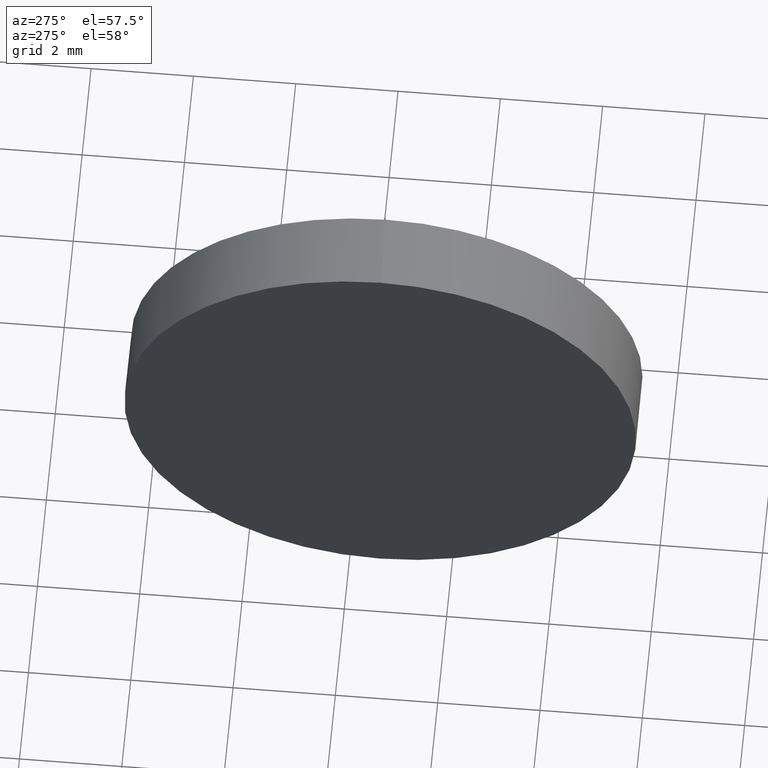
[diagram: clean part render]
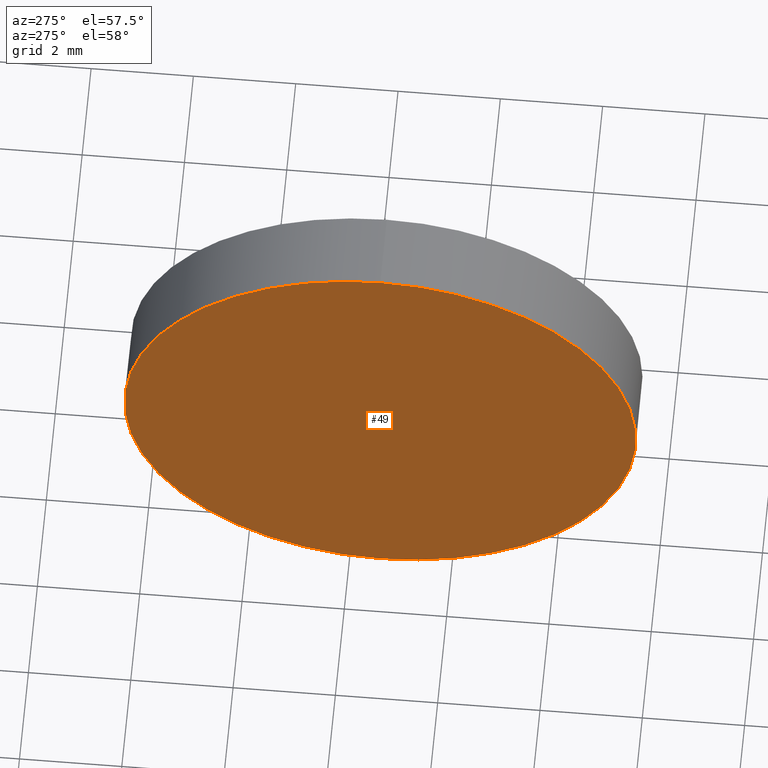
[diagram: same view with one face highlighted and labeled with its STEP entity id]
A machine part, auxiliary view. The second image highlights one B-rep face of the part: STEP entity #49.
In plain terms, the highlighted planar face has unit normal (1, 0, 0).
Its self-contained STEP definition (entity closure, byte-faithful):
#1 = EDGE_CURVE ( 'NONE', #105, #24, #130, .T. ) ;
#7 = DIRECTION ( 'NONE',  ( 0.0000000000000000000, 0.0000000000000000000, -1.000000000000000000 ) ) ;
#9 = PLANE ( 'NONE',  #38 ) ;
#24 = VERTEX_POINT ( 'NONE', #180 ) ;
#25 = DIRECTION ( 'NONE',  ( -1.000000000000000000, -0.0000000000000000000, -0.0000000000000000000 ) ) ;
#31 = CARTESIAN_POINT ( 'NONE',  ( 1101.083462945326800, 183.3935781701384300, 0.0000000000000000000 ) ) ;
#38 = AXIS2_PLACEMENT_3D ( 'NONE', #124, #181, #7 ) ;
#43 = AXIS2_PLACEMENT_3D ( 'NONE', #183, #25, #69 ) ;
#46 = EDGE_LOOP ( 'NONE', ( #56, #128 ) ) ;
#49 = ADVANCED_FACE ( 'NONE', ( #142 ), #9, .F. ) ;
#54 = DIRECTION ( 'NONE',  ( 0.0000000000000000000, 0.0000000000000000000, 1.000000000000000000 ) ) ;
#56 = ORIENTED_EDGE ( 'NONE', *, *, #1, .T. ) ;
#67 = CIRCLE ( 'NONE', #160, 5.000000000000004400 ) ;
#69 = DIRECTION ( 'NONE',  ( 0.0000000000000000000, 0.0000000000000000000, 1.000000000000000000 ) ) ;
#102 = CARTESIAN_POINT ( 'NONE',  ( 1101.083462945326800, 183.3935781701384300, 5.000000000000004400 ) ) ;
#105 = VERTEX_POINT ( 'NONE', #102 ) ;
#117 = DIRECTION ( 'NONE',  ( -1.000000000000000000, -0.0000000000000000000, -0.0000000000000000000 ) ) ;
#124 = CARTESIAN_POINT ( 'NONE',  ( 1101.083462945326800, 183.3935781701384300, 0.0000000000000000000 ) ) ;
#128 = ORIENTED_EDGE ( 'NONE', *, *, #150, .T. ) ;
#130 = CIRCLE ( 'NONE', #43, 5.000000000000004400 ) ;
#142 = FACE_OUTER_BOUND ( 'NONE', #46, .T. ) ;
#150 = EDGE_CURVE ( 'NONE', #24, #105, #67, .T. ) ;
#160 = AXIS2_PLACEMENT_3D ( 'NONE', #31, #117, #54 ) ;
#180 = CARTESIAN_POINT ( 'NONE',  ( 1101.083462945326800, 183.3935781701384300, -5.000000000000004400 ) ) ;
#181 = DIRECTION ( 'NONE',  ( 1.000000000000000000, 0.0000000000000000000, 0.0000000000000000000 ) ) ;
#183 = CARTESIAN_POINT ( 'NONE',  ( 1101.083462945326800, 183.3935781701384300, 0.0000000000000000000 ) ) ;